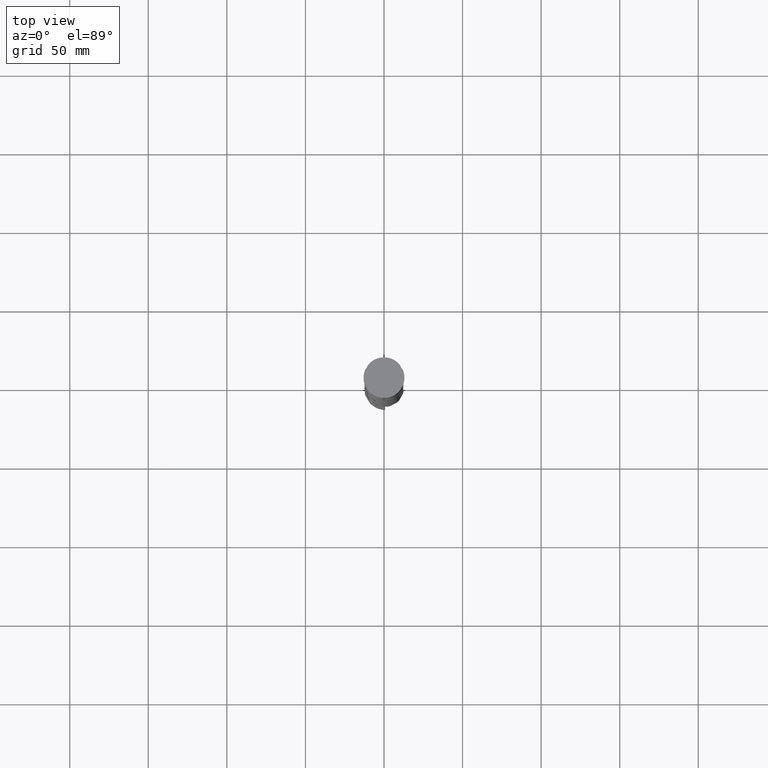
[diagram: clean part render]
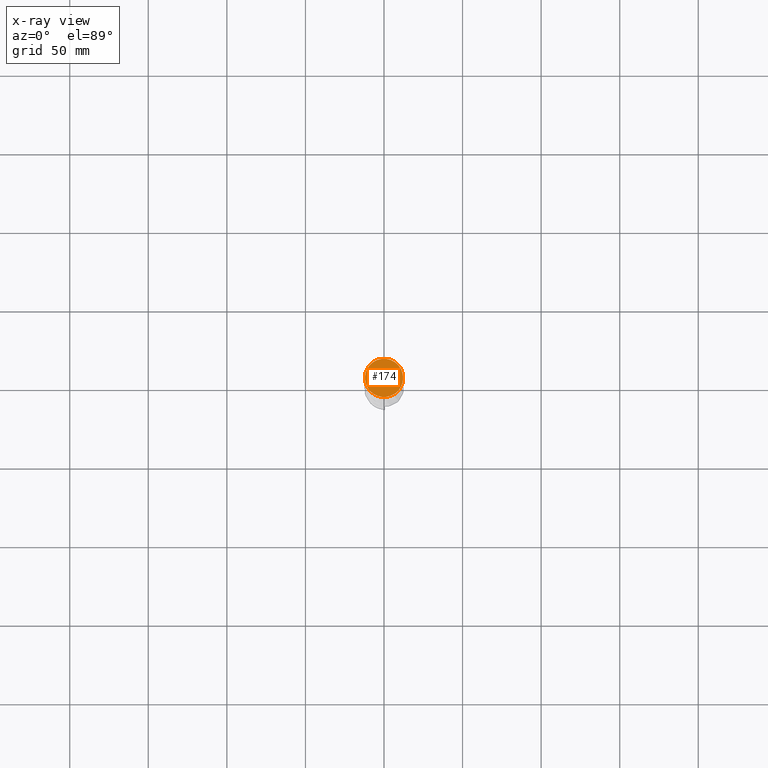
[diagram: x-ray — body ghosted, one internal face saturated and labeled with its STEP entity id]
A machine part, top view, then the same camera in x-ray: the body is ghosted and one INTERNAL B-rep face — a face not visible from any outside direction — is saturated and labeled: STEP entity #174.
In plain terms, the highlighted planar face has unit normal (0, 0, -1).
Its self-contained STEP definition (entity closure, byte-faithful):
#33 = CARTESIAN_POINT ( 'NONE',  ( -12.20000000000000639, 0.000000000000000000, -12.00000000000000000 ) ) ;
#174 = ADVANCED_FACE ( 'NONE', ( #2314 ), #3772, .F. ) ;
#359 = VERTEX_POINT ( 'NONE', #33 ) ;
#516 = DIRECTION ( 'NONE',  ( -0.000000000000000000, -0.000000000000000000, 1.000000000000000000 ) ) ;
#532 = CIRCLE ( 'NONE', #605, 12.20000000000000639 ) ;
#572 = CARTESIAN_POINT ( 'NONE',  ( 0.000000000000000000, 0.000000000000000000, -12.00000000000000000 ) ) ;
#605 = AXIS2_PLACEMENT_3D ( 'NONE', #4418, #516, #1906 ) ;
#1020 = EDGE_LOOP ( 'NONE', ( #4534, #4354 ) ) ;
#1277 = DIRECTION ( 'NONE',  ( -1.000000000000000000, 0.000000000000000000, -0.000000000000000000 ) ) ;
#1897 = DIRECTION ( 'NONE',  ( -0.000000000000000000, -0.000000000000000000, 1.000000000000000000 ) ) ;
#1906 = DIRECTION ( 'NONE',  ( -1.000000000000000000, 0.000000000000000000, 0.000000000000000000 ) ) ;
#1961 = EDGE_CURVE ( 'NONE', #2120, #359, #532, .T. ) ;
#2120 = VERTEX_POINT ( 'NONE', #3162 ) ;
#2314 = FACE_OUTER_BOUND ( 'NONE', #1020, .T. ) ;
#2786 = CIRCLE ( 'NONE', #3088, 12.20000000000000639 ) ;
#2989 = AXIS2_PLACEMENT_3D ( 'NONE', #572, #4499, #1277 ) ;
#3088 = AXIS2_PLACEMENT_3D ( 'NONE', #4334, #1897, #3322 ) ;
#3162 = CARTESIAN_POINT ( 'NONE',  ( 12.20000000000000639, 1.512438796946981880E-15, -12.00000000000000000 ) ) ;
#3322 = DIRECTION ( 'NONE',  ( -1.000000000000000000, 0.000000000000000000, 0.000000000000000000 ) ) ;
#3772 = PLANE ( 'NONE',  #2989 ) ;
#4141 = EDGE_CURVE ( 'NONE', #359, #2120, #2786, .T. ) ;
#4334 = CARTESIAN_POINT ( 'NONE',  ( 0.000000000000000000, 0.000000000000000000, -12.00000000000000000 ) ) ;
#4354 = ORIENTED_EDGE ( 'NONE', *, *, #1961, .T. ) ;
#4418 = CARTESIAN_POINT ( 'NONE',  ( 0.000000000000000000, 0.000000000000000000, -12.00000000000000000 ) ) ;
#4499 = DIRECTION ( 'NONE',  ( 0.000000000000000000, 0.000000000000000000, -1.000000000000000000 ) ) ;
#4534 = ORIENTED_EDGE ( 'NONE', *, *, #4141, .T. ) ;